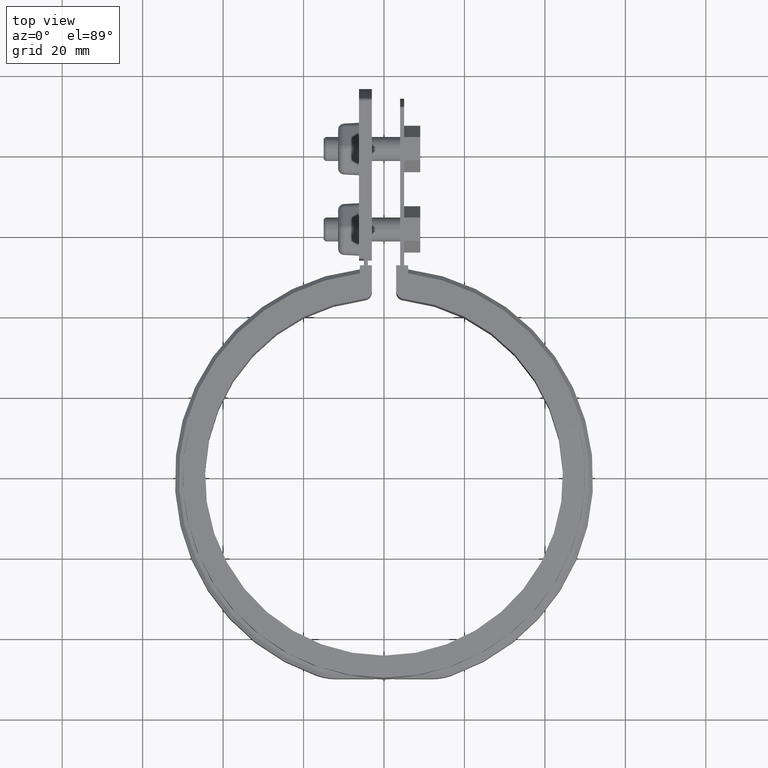
[diagram: clean part render]
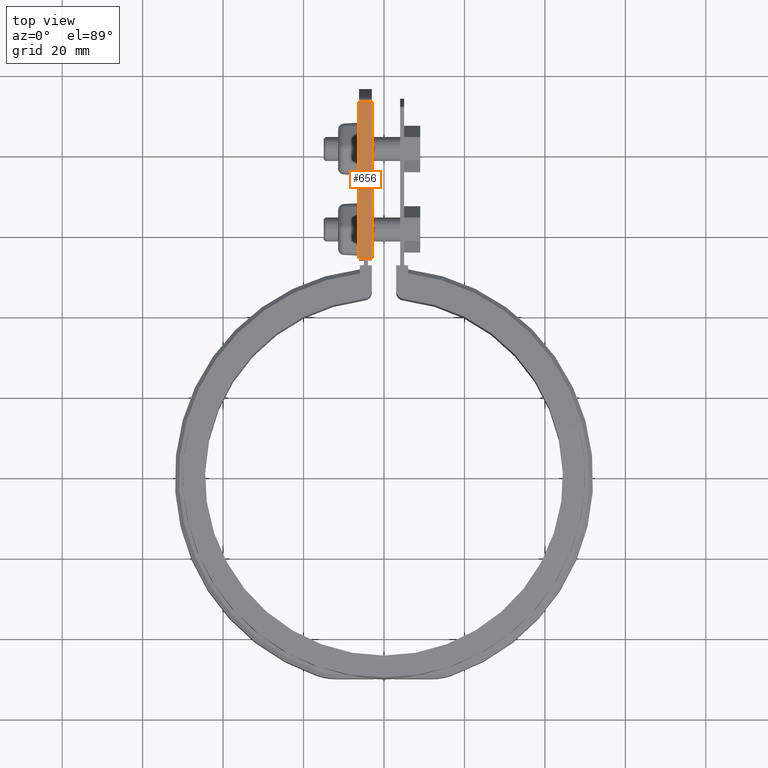
[diagram: same view with one face highlighted and labeled with its STEP entity id]
A machine part, top view. The second image highlights one B-rep face of the part: STEP entity #656.
In plain terms, the highlighted planar face has unit normal (0, 0, -1).
Its self-contained STEP definition (entity closure, byte-faithful):
#656 = ADVANCED_FACE( '', ( #1271 ), #1272, .F. );
#1271 = FACE_OUTER_BOUND( '', #2642, .T. );
#1272 = PLANE( '', #2643 );
#2642 = EDGE_LOOP( '', ( #6322, #6323, #6324, #6325 ) );
#2643 = AXIS2_PLACEMENT_3D( '', #6326, #6327, #6328 );
#6322 = ORIENTED_EDGE( '', *, *, #8246, .F. );
#6323 = ORIENTED_EDGE( '', *, *, #8297, .T. );
#6324 = ORIENTED_EDGE( '', *, *, #8079, .F. );
#6325 = ORIENTED_EDGE( '', *, *, #8295, .T. );
#6326 = CARTESIAN_POINT( '', ( -6.20000000000003, 54.1961090692274, 13.7000000000013 ) );
#6327 = DIRECTION( '', ( 2.99848040556712E-018, 1.25318295324441E-016, -1.00000000000000 ) );
#6328 = DIRECTION( '', ( -4.59398167318704E-017, -1.00000000000000, -1.25318295324441E-016 ) );
#8079 = EDGE_CURVE( '', #9456, #9458, #9459, .T. );
#8246 = EDGE_CURVE( '', #9787, #9789, #9790, .T. );
#8295 = EDGE_CURVE( '', #9456, #9789, #9871, .T. );
#8297 = EDGE_CURVE( '', #9787, #9458, #9873, .F. );
#9456 = VERTEX_POINT( '', #13428 );
#9458 = VERTEX_POINT( '', #13431 );
#9459 = LINE( '', #13432, #13433 );
#9787 = VERTEX_POINT( '', #13907 );
#9789 = VERTEX_POINT( '', #13909 );
#9790 = LINE( '', #13910, #13911 );
#9871 = LINE( '', #14030, #14031 );
#9873 = LINE( '', #14034, #14035 );
#13428 = CARTESIAN_POINT( '', ( -6.20000000000003, 54.1961090692274, 13.7000000000013 ) );
#13431 = CARTESIAN_POINT( '', ( -6.20000000000002, 93.2395653049180, 13.7000000000013 ) );
#13432 = CARTESIAN_POINT( '', ( -6.20000000000003, 54.1961090692274, 13.7000000000013 ) );
#13433 = VECTOR( '', #15286, 1000.00000000000 );
#13907 = CARTESIAN_POINT( '', ( -3.00000000000002, 93.2395653049180, 13.7000000000013 ) );
#13909 = CARTESIAN_POINT( '', ( -3.00000000000003, 54.1961090692274, 13.7000000000013 ) );
#13910 = CARTESIAN_POINT( '', ( -3.00000000000002, 93.4873992214579, 13.7000000000013 ) );
#13911 = VECTOR( '', #15493, 1000.00000000000 );
#14030 = CARTESIAN_POINT( '', ( -6.20000000000003, 54.1961090692274, 13.7000000000013 ) );
#14031 = VECTOR( '', #15562, 1000.00000000000 );
#14034 = CARTESIAN_POINT( '', ( -6.20000000000002, 93.2395653049180, 13.7000000000013 ) );
#14035 = VECTOR( '', #15564, 1000.00000000000 );
#15286 = DIRECTION( '', ( 5.56970201441962E-017, 1.00000000000000, 1.25318295324441E-016 ) );
#15493 = DIRECTION( '', ( -5.56970201441962E-017, -1.00000000000000, -5.55111512312578E-017 ) );
#15562 = DIRECTION( '', ( 1.00000000000000, -4.59398167318704E-017, 2.99848040556711E-018 ) );
#15564 = DIRECTION( '', ( 1.00000000000000, 1.51901127710121E-016, 2.99848040556713E-018 ) );